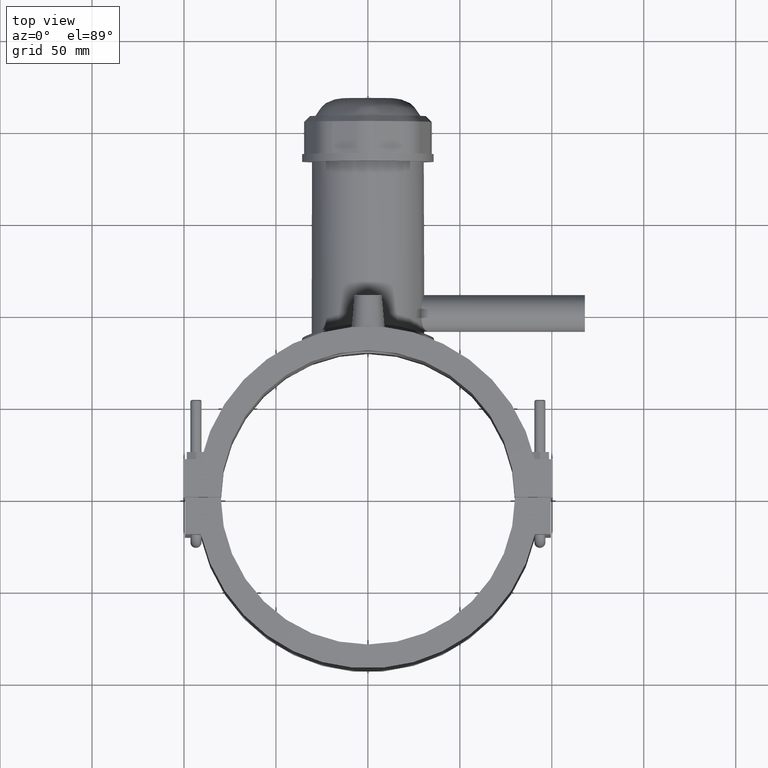
[diagram: clean part render]
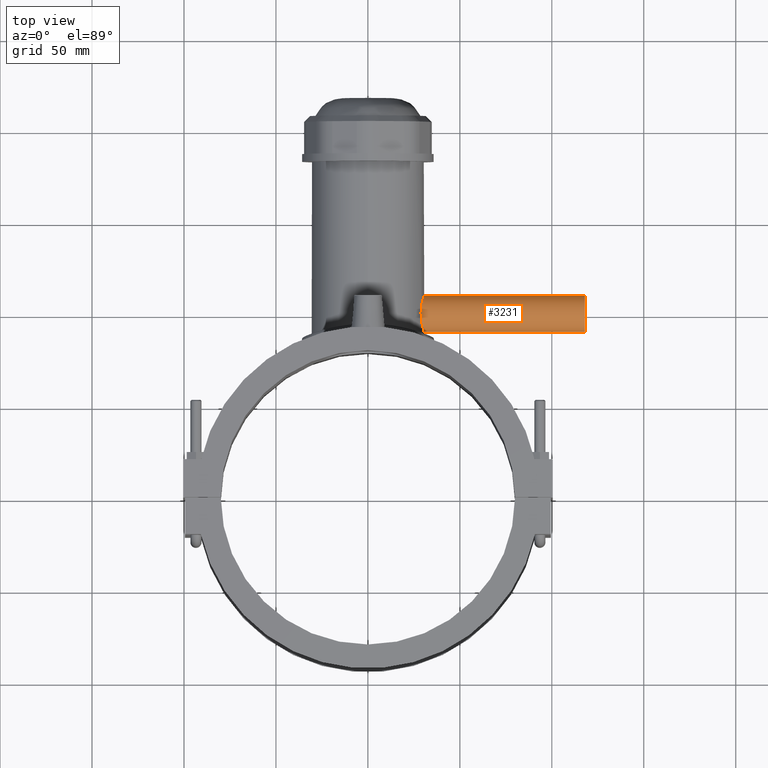
[diagram: same view with one face highlighted and labeled with its STEP entity id]
A machine part, top view. The second image highlights one B-rep face of the part: STEP entity #3231.
In plain terms, the highlighted cylindrical surface (bore or boss wall) has radius 10 mm, axis along (1, 0, 0).
Its self-contained STEP definition (entity closure, byte-faithful):
#771=FACE_BOUND('',#1300,.T.);
#879=CIRCLE('',#3517,10.);
#1063=FACE_OUTER_BOUND('',#1299,.T.);
#1299=EDGE_LOOP('',(#2986));
#1300=EDGE_LOOP('',(#2987));
#1356=B_SPLINE_CURVE_WITH_KNOTS('',3,(#6477,#6478,#6479,#6480,#6481,#6482,
#6483,#6484,#6485,#6486,#6487,#6488,#6489,#6490,#6491,#6492,#6493,#6494,
#6495,#6496,#6497,#6498,#6499,#6500,#6501,#6502,#6503,#6504,#6505,#6506,
#6507,#6508,#6509,#6510),.UNSPECIFIED.,.T.,.F.,(4,2,2,2,2,2,2,2,2,2,2,2,
2,2,2,2,4),(0.,0.379801307840264,0.759602615680529,1.13924189562718,1.51888117557384,
1.89852045552049,2.27815973546714,2.65796104330741,3.03776235114767,3.41756365898794,
3.7973649668282,4.17700424677485,4.55664352672151,4.93628280666816,5.31592208661482,
5.69572339445508,6.07552470229535),.UNSPECIFIED.);
#1653=VERTEX_POINT('',#6473);
#1654=VERTEX_POINT('',#6476);
#2093=EDGE_CURVE('',#1653,#1653,#879,.T.);
#2094=EDGE_CURVE('',#1654,#1654,#1356,.T.);
#2986=ORIENTED_EDGE('',*,*,#2093,.F.);
#2987=ORIENTED_EDGE('',*,*,#2094,.F.);
#3049=CYLINDRICAL_SURFACE('',#3518,10.);
#3231=ADVANCED_FACE('',(#1063,#771),#3049,.T.);
#3517=AXIS2_PLACEMENT_3D('',#6474,#4369,#4370);
#3518=AXIS2_PLACEMENT_3D('',#6475,#4371,#4372);
#4369=DIRECTION('center_axis',(1.,0.,0.));
#4370=DIRECTION('ref_axis',(0.,0.,-1.));
#4371=DIRECTION('center_axis',(1.,0.,0.));
#4372=DIRECTION('ref_axis',(0.,1.,0.));
#6473=CARTESIAN_POINT('',(118.,111.,0.));
#6474=CARTESIAN_POINT('Origin',(118.,101.,0.));
#6475=CARTESIAN_POINT('Origin',(59.,101.,0.));
#6476=CARTESIAN_POINT('',(28.9198893497192,101.,-10.));
#6477=CARTESIAN_POINT('Ctrl Pts',(28.9198893497192,101.,-10.));
#6478=CARTESIAN_POINT('Ctrl Pts',(28.9198893497192,99.7339956405325,-10.));
#6479=CARTESIAN_POINT('Ctrl Pts',(29.0117476879204,98.3905974675056,-9.74507535202428));
#6480=CARTESIAN_POINT('Ctrl Pts',(29.3356105596978,95.9299354627184,-8.72180812961023));
#6481=CARTESIAN_POINT('Ctrl Pts',(29.562117183714,94.8117687201887,-7.95390434391968));
#6482=CARTESIAN_POINT('Ctrl Pts',(29.9813908363415,93.0464722849669,-6.18860790869784));
#6483=CARTESIAN_POINT('Ctrl Pts',(30.2024962346254,92.278278195008,-5.0702905300735));
#6484=CARTESIAN_POINT('Ctrl Pts',(30.51378978599,91.2547949318716,-2.60907219497214));
#6485=CARTESIAN_POINT('Ctrl Pts',(30.6,91.,-1.26546426648885));
#6486=CARTESIAN_POINT('Ctrl Pts',(30.6,91.,1.26546426648885));
#6487=CARTESIAN_POINT('Ctrl Pts',(30.51378978599,91.2547949318716,2.60907219497214));
#6488=CARTESIAN_POINT('Ctrl Pts',(30.2024962346254,92.278278195008,5.0702905300735));
#6489=CARTESIAN_POINT('Ctrl Pts',(29.9813908363415,93.0464722849669,6.18860790869784));
#6490=CARTESIAN_POINT('Ctrl Pts',(29.562117183714,94.8117687201887,7.95390434391968));
#6491=CARTESIAN_POINT('Ctrl Pts',(29.3356105596978,95.9299354627184,8.72180812961023));
#6492=CARTESIAN_POINT('Ctrl Pts',(29.0117476879204,98.3905974675056,9.74507535202428));
#6493=CARTESIAN_POINT('Ctrl Pts',(28.9198893497192,99.7339956405325,10.));
#6494=CARTESIAN_POINT('Ctrl Pts',(28.9198893497192,102.266004359468,10.));
#6495=CARTESIAN_POINT('Ctrl Pts',(29.0117476879204,103.609402532494,9.74507535202428));
#6496=CARTESIAN_POINT('Ctrl Pts',(29.3356105596978,106.070064537282,8.72180812961023));
#6497=CARTESIAN_POINT('Ctrl Pts',(29.562117183714,107.188231279811,7.95390434391968));
#6498=CARTESIAN_POINT('Ctrl Pts',(29.9813908363415,108.953527715033,6.18860790869784));
#6499=CARTESIAN_POINT('Ctrl Pts',(30.2024962346254,109.721721804992,5.07029053007351));
#6500=CARTESIAN_POINT('Ctrl Pts',(30.51378978599,110.745205068128,2.60907219497215));
#6501=CARTESIAN_POINT('Ctrl Pts',(30.6,111.,1.26546426648885));
#6502=CARTESIAN_POINT('Ctrl Pts',(30.6,111.,-1.26546426648885));
#6503=CARTESIAN_POINT('Ctrl Pts',(30.51378978599,110.745205068128,-2.60907219497214));
#6504=CARTESIAN_POINT('Ctrl Pts',(30.2024962346254,109.721721804992,-5.0702905300735));
#6505=CARTESIAN_POINT('Ctrl Pts',(29.9813908363415,108.953527715033,-6.18860790869784));
#6506=CARTESIAN_POINT('Ctrl Pts',(29.562117183714,107.188231279811,-7.95390434391968));
#6507=CARTESIAN_POINT('Ctrl Pts',(29.3356105596978,106.070064537282,-8.72180812961022));
#6508=CARTESIAN_POINT('Ctrl Pts',(29.0117476879204,103.609402532494,-9.74507535202427));
#6509=CARTESIAN_POINT('Ctrl Pts',(28.9198893497192,102.266004359468,-10.));
#6510=CARTESIAN_POINT('Ctrl Pts',(28.9198893497192,101.,-10.));